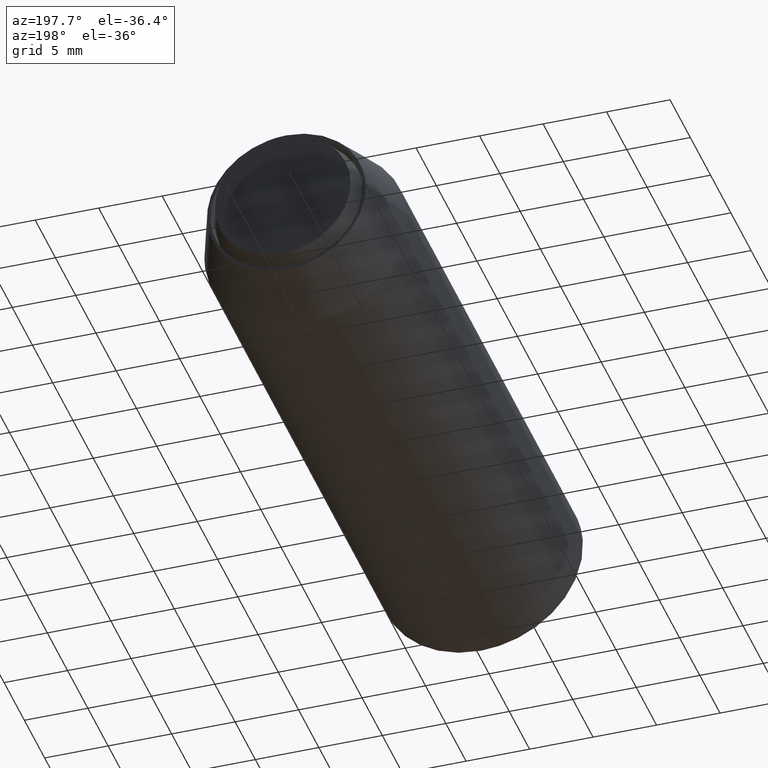
[diagram: clean part render]
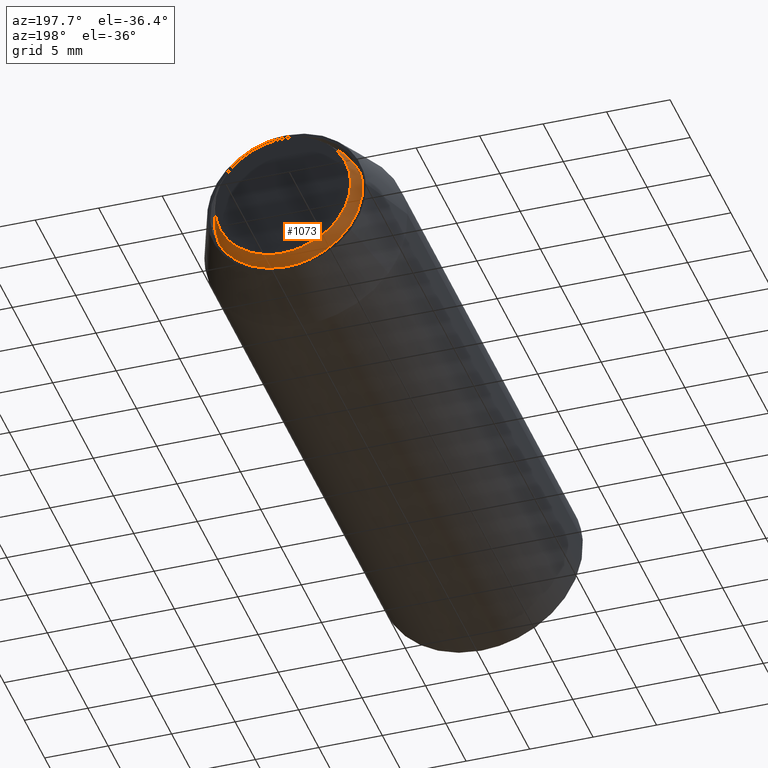
[diagram: same view with one face highlighted and labeled with its STEP entity id]
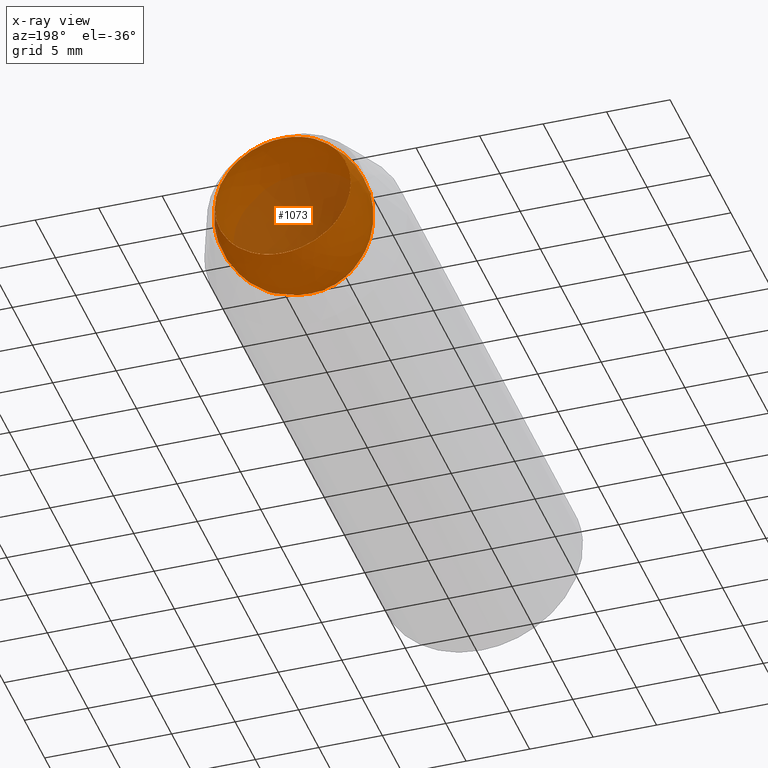
[diagram: x-ray of the same camera — body ghosted, the highlighted face saturated]
A machine part, auxiliary view. The second image highlights one B-rep face of the part: STEP entity #1073.
The next image is the same camera in x-ray: the body ghosted, the highlighted face saturated — about 34% of this face is hidden behind the body in this view.
In plain terms, the highlighted face is a freeform B-spline surface patch.
Its self-contained STEP definition (entity closure, byte-faithful):
#993=CARTESIAN_POINT('',(-3.028492904751711,2.385804239656766,-3.028492904751711));
#994=CARTESIAN_POINT('',(-2.884428461843683,1.900500287936904,-3.845904615791577));
#995=CARTESIAN_POINT('',(-1.316923014224977,1.056373571428571,-5.267692056899907));
#996=CARTESIAN_POINT('',(1.316923014224978,1.056373571428570,-5.267692056899907));
#997=CARTESIAN_POINT('',(2.884428461843685,1.900500287936903,-3.845904615791577));
#998=CARTESIAN_POINT('',(3.028492904751713,2.385804239656764,-3.028492904751711));
#999=CARTESIAN_POINT('',(-3.845904615791577,1.900500287936905,-2.884428461843683));
#1000=CARTESIAN_POINT('',(-3.950769042674930,1.056373571428571,-3.950769042674930));
#1001=CARTESIAN_POINT('',(-2.089321569082894,-0.777943534199364,-6.267964707248679));
#1002=CARTESIAN_POINT('',(2.089321569082894,-0.777943534199365,-6.267964707248679));
#1003=CARTESIAN_POINT('',(3.950769042674930,1.056373571428570,-3.950769042674930));
#1004=CARTESIAN_POINT('',(3.845904615791577,1.900500287936903,-2.884428461843683));
#1005=CARTESIAN_POINT('',(-5.267692056899907,1.056373571428572,-1.316923014224977));
#1006=CARTESIAN_POINT('',(-6.267964707248684,-0.777943534199363,-2.089321569082894));
#1007=CARTESIAN_POINT('',(-5.052988182826792,-7.816155000000023,-5.052988182826791));
#1008=CARTESIAN_POINT('',(5.052988182826790,-7.816155000000023,-5.052988182826791));
#1009=CARTESIAN_POINT('',(6.267964707248679,-0.777943534199365,-2.089321569082894));
#1010=CARTESIAN_POINT('',(5.267692056899907,1.056373571428570,-1.316923014224977));
#1011=CARTESIAN_POINT('',(-5.267692056899907,1.056373571428572,1.316923014224977));
#1012=CARTESIAN_POINT('',(-6.267964707248684,-0.777943534199363,2.089321569082894));
#1013=CARTESIAN_POINT('',(-5.052988182826792,-7.816155000000023,5.052988182826791));
#1014=CARTESIAN_POINT('',(5.052988182826790,-7.816155000000023,5.052988182826791));
#1015=CARTESIAN_POINT('',(6.267964707248679,-0.777943534199365,2.089321569082894));
#1016=CARTESIAN_POINT('',(5.267692056899907,1.056373571428570,1.316923014224977));
#1017=CARTESIAN_POINT('',(-3.845904615791577,1.900500287936905,2.884428461843683));
#1018=CARTESIAN_POINT('',(-3.950769042674930,1.056373571428572,3.950769042674930));
#1019=CARTESIAN_POINT('',(-2.089321569082894,-0.777943534199363,6.267964707248679));
#1020=CARTESIAN_POINT('',(2.089321569082894,-0.777943534199364,6.267964707248679));
#1021=CARTESIAN_POINT('',(3.950769042674930,1.056373571428571,3.950769042674930));
#1022=CARTESIAN_POINT('',(3.845904615791577,1.900500287936903,2.884428461843683));
#1023=CARTESIAN_POINT('',(-3.028492904751711,2.385804239656766,3.028492904751711));
#1024=CARTESIAN_POINT('',(-2.884428461843683,1.900500287936905,3.845904615791577));
#1025=CARTESIAN_POINT('',(-1.316923014224977,1.056373571428572,5.267692056899907));
#1026=CARTESIAN_POINT('',(1.316923014224978,1.056373571428571,5.267692056899907));
#1027=CARTESIAN_POINT('',(2.884428461843685,1.900500287936904,3.845904615791577));
#1028=CARTESIAN_POINT('',(3.028492904751713,2.385804239656764,3.028492904751711));
#1036=(BOUNDED_SURFACE()B_SPLINE_SURFACE(2,2,((#993,#999,#1005,#1011,#1017,#1023),(#994,#1000,#1006,#1012,#1018,#1024),(#995,#1001,#1007,#1013,#1019,#1025),(#996,#1002,#1008,#1014,#1020,#1026),(#997,#1003,#1009,#1015,#1021,#1027),(#998,#1004,#1010,#1016,#1022,#1028)),.UNSPECIFIED.,.F.,.F.,.U.)B_SPLINE_SURFACE_WITH_KNOTS((3,1,1,1,3),(3,1,1,1,3),(0.0,7.460373557746064,14.920747115492130,22.381120673238190,29.841494230984260),(0.0,7.460373557746062,14.920747115492119,22.381120673238190,29.841494230984249),.UNSPECIFIED.)GEOMETRIC_REPRESENTATION_ITEM()RATIONAL_B_SPLINE_SURFACE(((6.673931016841601,5.255448262631201,3.836965508420800,3.836965508420800,5.255448262631201,6.673931016841601),(5.255448262631201,3.836965508420800,2.418482754210400,2.418482754210400,3.836965508420800,5.255448262631201),(3.836965508420800,2.418482754210400,1.0,1.0,2.418482754210400,3.836965508420800),(3.836965508420800,2.418482754210400,1.0,1.0,2.418482754210400,3.836965508420800),(5.255448262631201,3.836965508420800,2.418482754210400,2.418482754210400,3.836965508420800,5.255448262631201),(6.673931016841601,5.255448262631201,3.836965508420800,3.836965508420800,5.255448262631201,6.673931016841601)))REPRESENTATION_ITEM('')SURFACE());
#1037=CARTESIAN_POINT('',(0.0,0.900000000000000,-5.350000188408870));
#1038=VERTEX_POINT('',#1037);
#1039=CARTESIAN_POINT('',(0.0,0.900000000000000,5.350000188408869));
#1040=VERTEX_POINT('',#1039);
#1041=CARTESIAN_POINT('',(0.0,0.900000000000000,-5.350000188408870));
#1042=CARTESIAN_POINT('',(5.350000188408870,0.900000000000000,-5.350000188408870));
#1043=CARTESIAN_POINT('',(5.350000188408870,0.900000000000000,-4.785857E-016));
#1044=CARTESIAN_POINT('',(5.350000188408870,0.900000000000000,5.350000188408869));
#1045=CARTESIAN_POINT('',(0.0,0.900000000000000,5.350000188408869));
#1053=(BOUNDED_CURVE()B_SPLINE_CURVE(2,(#1041,#1042,#1043,#1044,#1045),.UNSPECIFIED.,.F.,.U.)B_SPLINE_CURVE_WITH_KNOTS((3,2,3),(0.0,0.250000000000000,0.500000000000000),.UNSPECIFIED.)CURVE()GEOMETRIC_REPRESENTATION_ITEM()RATIONAL_B_SPLINE_CURVE((1.0,0.707106781186548,1.0,0.707106781186548,1.0))REPRESENTATION_ITEM(''));
#1054=EDGE_CURVE('',#1038,#1040,#1053,.T.);
#1055=ORIENTED_EDGE('',*,*,#1054,.T.);
#1056=CARTESIAN_POINT('',(0.0,0.900000000000000,5.350000188408869));
#1057=CARTESIAN_POINT('',(-5.350000188408870,0.900000000000000,5.350000188408869));
#1058=CARTESIAN_POINT('',(-5.350000188408870,0.900000000000000,-4.785857E-016));
#1059=CARTESIAN_POINT('',(-5.350000188408870,0.900000000000000,-5.350000188408870));
#1060=CARTESIAN_POINT('',(0.0,0.900000000000000,-5.350000188408870));
#1068=(BOUNDED_CURVE()B_SPLINE_CURVE(2,(#1056,#1057,#1058,#1059,#1060),.UNSPECIFIED.,.F.,.U.)B_SPLINE_CURVE_WITH_KNOTS((3,2,3),(0.500000000000000,0.750000000000000,1.0),.UNSPECIFIED.)CURVE()GEOMETRIC_REPRESENTATION_ITEM()RATIONAL_B_SPLINE_CURVE((1.0,0.707106781186548,1.0,0.707106781186548,1.0))REPRESENTATION_ITEM(''));
#1069=EDGE_CURVE('',#1040,#1038,#1068,.T.);
#1070=ORIENTED_EDGE('',*,*,#1069,.T.);
#1071=EDGE_LOOP('',(#1055,#1070));
#1072=FACE_OUTER_BOUND('',#1071,.T.);
#1073=ADVANCED_FACE('',(#1072),#1036,.T.);